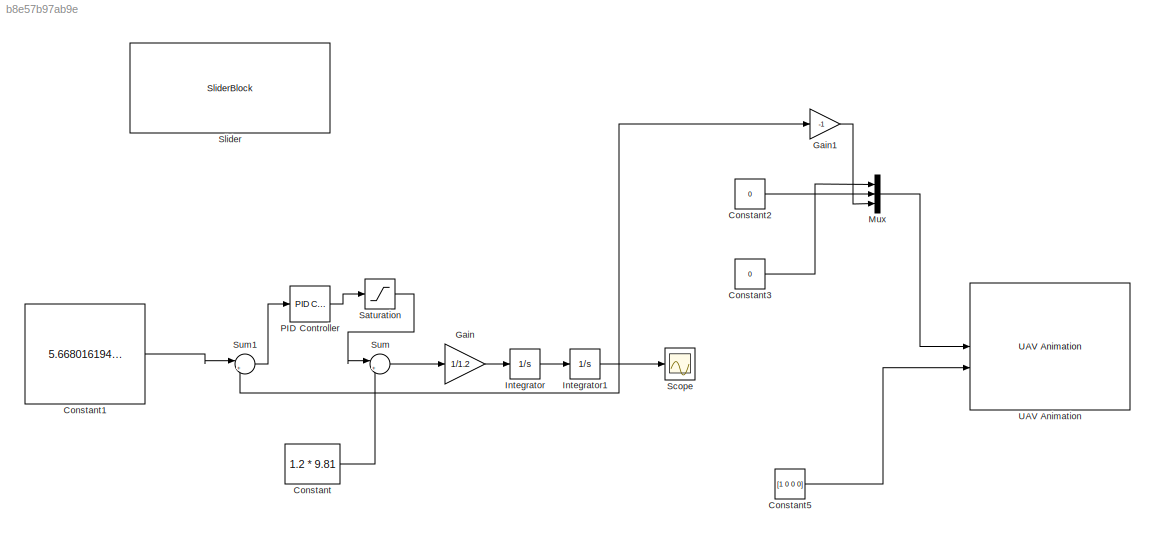
MODEL slx_b8e57b97ab9e
KIND model
CONFIG AbsTol = auto
CONFIG EnableMultiTasking = off
CONFIG FixedStep = auto
CONFIG MaxStep = auto
CONFIG MinStep = auto
CONFIG RelTol = 1e-3
CONFIG SampleTimeConstraint = Unconstrained
CONFIG SolverName = VariableStepAuto
CONFIG StartTime = 0.0
CONFIG StopTime = inf
BLOCK [Constant] Constant
  Value = 1.2 * 9.81
BLOCK [Constant] Constant1
  Value = 5.668016194331984
BLOCK [Constant] Constant2
  Value = 0
BLOCK [Constant] Constant3
  Value = 0
BLOCK [Constant] Constant5
  Value = [1 0 0 0]
BLOCK [Gain] Gain
  Gain = 1/1.2
BLOCK [Gain] Gain1
  Gain = -1
BLOCK [Integrator] Integrator
BLOCK [Integrator] Integrator1
  LimitOutput = on
  LowerSaturationLimit = 0
BLOCK [Mux] Mux
  DisplayOption = bar
  Inputs = 3
BLOCK [Reference] PID Controller  REF=slpidlib/PID Controller
  LibrarySourceBlock = simulink/Continuous/PID Controller
  SourceBlock = slpidlib/PID Controller
  SourceType = PID 1dof
BLOCK [Saturate] Saturation
  LowerLimit = 0
  UpperLimit = 30
BLOCK [Scope] Scope
  Floating = off
  NumInputPorts = 1
  ScopeSpecificationString = Simulink.scopes.TimeScopeBlockCfg('CurrentConfiguration', extmgr.ConfigurationSet(extmgr.Configuration('Core','General UI',true),extmgr.Configuration('Core','Source UI',true),extmgr.Configuration('Sources','WiredSimulink',true),extmgr.Configuration('Visuals','Time Domain',true,'SerializedDisplays',{struct('MinYLimReal','-43.01541','MaxYLimReal','31.85002','YLabelReal','','MinYLimMag','0.00000','Ma...<+1500ch>
BLOCK [SliderBlock] Slider
  ScaleMax = 10
BLOCK [Sum] Sum
  Inputs = |+-
BLOCK [Sum] Sum1
  Inputs = |+-
BLOCK [Reference] UAV Animation  REF=uavutilslib/UAV Animation
  SourceBlock = uavutilslib/UAV Animation
  SourceType = uav.sluav.internal.system.UAVAnimation
LINE Constant1:1 -> Sum1:1
LINE Constant2:1 -> Mux:2
LINE Constant3:1 -> Mux:1
LINE Constant5:1 -> UAV Animation:2
LINE Constant:1 -> Sum:2
LINE Gain1:1 -> Mux:3
LINE Gain:1 -> Integrator:1
NET Integrator1:1 -> Gain1:1, Scope:1, Sum1:2
LINE Integrator:1 -> Integrator1:1
LINE Mux:1 -> UAV Animation:1
LINE PID Controller:1 -> Saturation:1
LINE Saturation:1 -> Sum:1
LINE Sum1:1 -> PID Controller:1
LINE Sum:1 -> Gain:1
note: NET lines group one-source signal fan-out (src -> all destinations, sorted); 1:1 wires keep LINE
